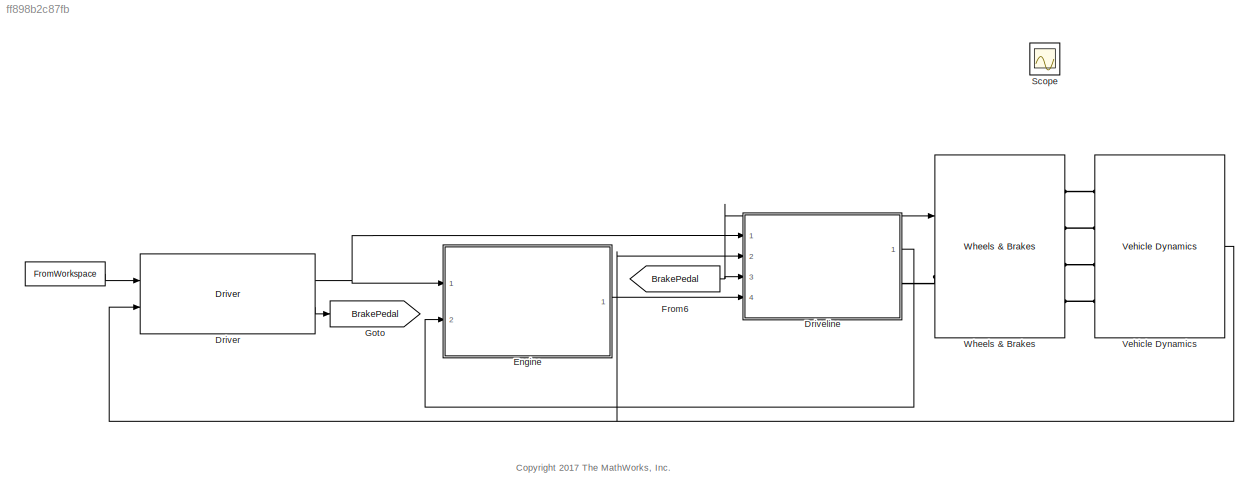
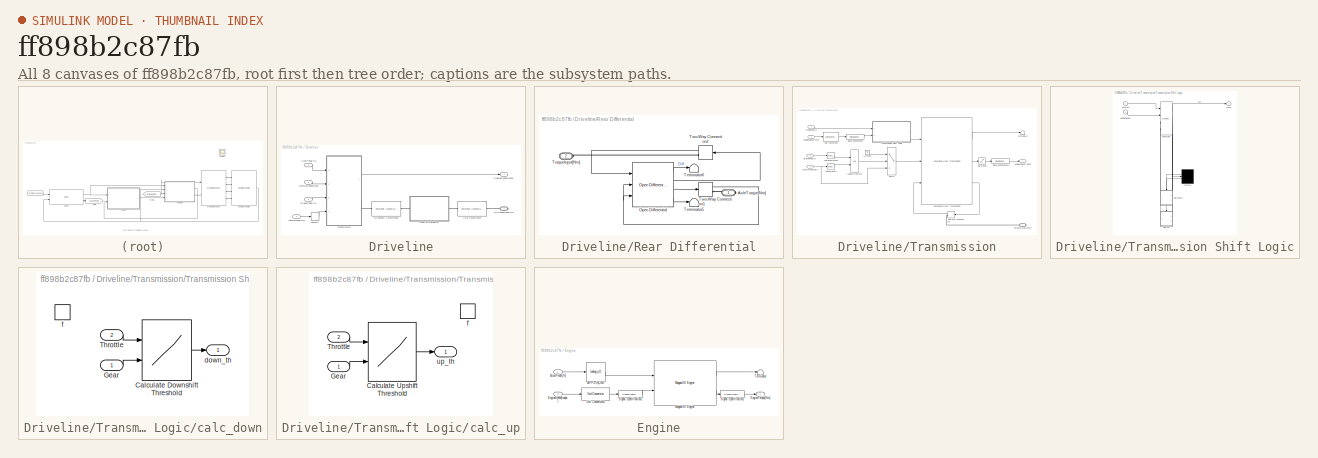
[diagram: thumbnail index - all 8 canvases of the model, root first then tree order]
MODEL slx_ff898b2c87fb
KIND model
CONFIG AbsTol = 1e-6
CONFIG EnableMultiTasking = off
CONFIG FixedStep = auto
CONFIG MaxStep = auto
CONFIG MinStep = auto
CONFIG RelTol = 1e-4
CONFIG SampleTimeConstraint = Unconstrained
CONFIG Solver = ode23tb
CONFIG SolverName = ode23tb
CONFIG StartTime = 0.0
CONFIG StopTime = TimeUS06
WORKSPACE source: MAT-file member
WORKSPACE Af = 4
BLOCK [FromWorkspace]  
  SampleTime = 0
  Tag = DriveCycle
  VariableName = DrCycles.US06
  ZeroCross = on
BLOCK [SubSystem] Driveline
  Ports = [4, 1, 0, 0, 0, 0, 1]
  RequestExecContextInheritance = off
BLOCK [Inport] Driveline/AccelPedal[%]
  IconDisplay = Port number
BLOCK [Reference] Driveline/Axle Compliance  REF=autolibsharedcoupling/Torsional Compliance
  Ports = [0, 0, 0, 0, 0, 1, 1]
  SourceBlock = autolibsharedcoupling/Torsional Compliance
  SourceProductBaseCode = PW
  SourceProductName = Powertrain Blockset
  SourceType = Torsional Compliance
BLOCK [Inport] Driveline/BrakePedal[%]
  IconDisplay = Port number
  Port = 3
BLOCK [Reference] Driveline/Driveshaft Compliance  REF=autolibsharedcoupling/Torsional Compliance
  Ports = [0, 0, 0, 0, 0, 1, 1]
  SourceBlock = autolibsharedcoupling/Torsional Compliance
  SourceProductBaseCode = PW
  SourceProductName = Powertrain Blockset
  SourceType = Torsional Compliance
BLOCK [PMIOPort] Driveline/DrivingTorque[Nm]
  Side = Right
BLOCK [Outport] Driveline/EngineSpeed[radps]
  IconDisplay = Port number
BLOCK [Inport] Driveline/InputTorque[Nm]
  IconDisplay = Port number
  Port = 4
BLOCK [Memory] Driveline/Memory
BLOCK [SubSystem] Driveline/Rear Differential
  Ports = [0, 0, 0, 0, 0, 1, 1]
  RequestExecContextInheritance = off
BLOCK [PMIOPort] Driveline/Rear Differential/AxleTorque[Nm]
  Side = Right
BLOCK [Reference] Driveline/Rear Differential/Open Differential  REF=autolibshareddiff/Open Differential
  Ports = [3, 4]
  SourceBlock = autolibshareddiff/Open Differential
  SourceProductBaseCode = PW
  SourceProductName = Powertrain Blockset
  SourceType = Open Differential
BLOCK [Terminator] Driveline/Rear Differential/Terminator5
BLOCK [Terminator] Driveline/Rear Differential/Terminator6
BLOCK [PMIOPort] Driveline/Rear Differential/TorqueInput[Nm]
  Port = 2
  Side = Left
BLOCK [TwoWayConnection] Driveline/Rear Differential/Two-Way Connection1
  Ports = [1, 1, 0, 0, 0, 0, 1]
BLOCK [TwoWayConnection] Driveline/Rear Differential/Two-Way Connection2
  Ports = [1, 1, 0, 0, 0, 0, 1]
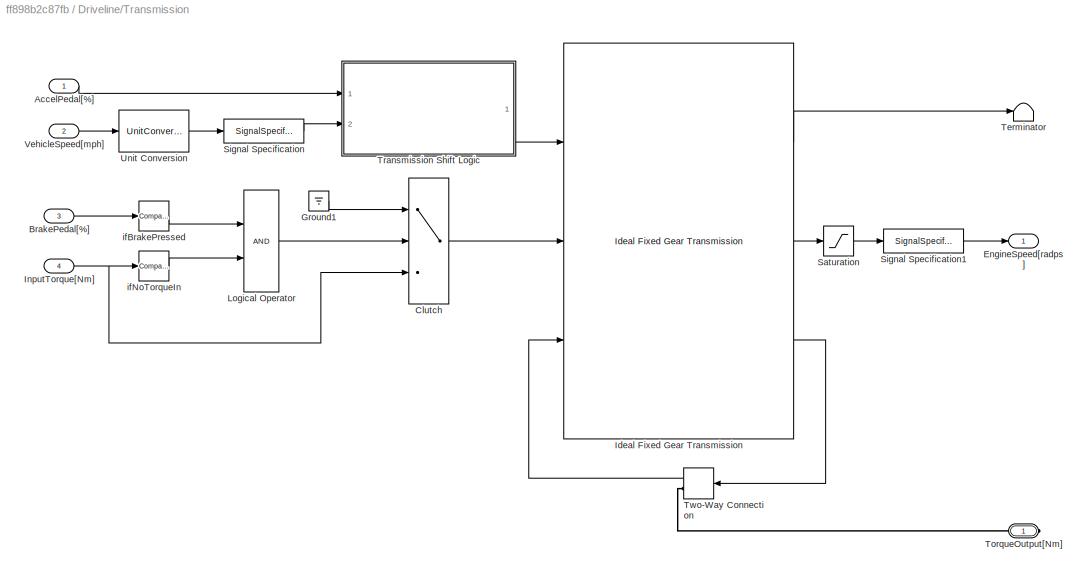
BLOCK [SubSystem] Driveline/Transmission
  Ports = [4, 1, 0, 0, 0, 0, 1]
  RequestExecContextInheritance = off
BLOCK [Inport] Driveline/Transmission/AccelPedal[%]
  IconDisplay = Port number
BLOCK [Inport] Driveline/Transmission/BrakePedal[%]
  IconDisplay = Port number
  Port = 3
BLOCK [Switch] Driveline/Transmission/Clutch
  Criteria = u2 ~= 0
  InputSameDT = off
  SaturateOnIntegerOverflow = off
BLOCK [Outport] Driveline/Transmission/EngineSpeed[radps]
  IconDisplay = Port number
BLOCK [Ground] Driveline/Transmission/Ground1
BLOCK [Reference] Driveline/Transmission/Ideal Fixed Gear Transmission  REF=autolibsharedtransfixedgear/Ideal Fixed Gear Transmission
  Ports = [3, 3]
  SourceBlock = autolibsharedtransfixedgear/Ideal Fixed Gear Transmission
  SourceProductBaseCode = PW
  SourceProductName = Powertrain Blockset
  SourceType = Ideal Fixed Gear Transmission
BLOCK [Inport] Driveline/Transmission/InputTorque[Nm]
  IconDisplay = Port number
  Port = 4
BLOCK [Logic] Driveline/Transmission/Logical Operator
  AllPortsSameDT = off
  OutDataTypeStr = boolean
  Ports = [2, 1]
BLOCK [Saturate] Driveline/Transmission/Saturation
  InputPortMap = u0
  LowerLimit = 500
  Ports = [1, 1]
  UpperLimit = 6000
BLOCK [SignalSpecification] Driveline/Transmission/Signal Specification
  Unit = km/h
BLOCK [SignalSpecification] Driveline/Transmission/Signal Specification1
  Unit = rad/s
BLOCK [Terminator] Driveline/Transmission/Terminator
BLOCK [PMIOPort] Driveline/Transmission/TorqueOutput[Nm]
  Side = Right
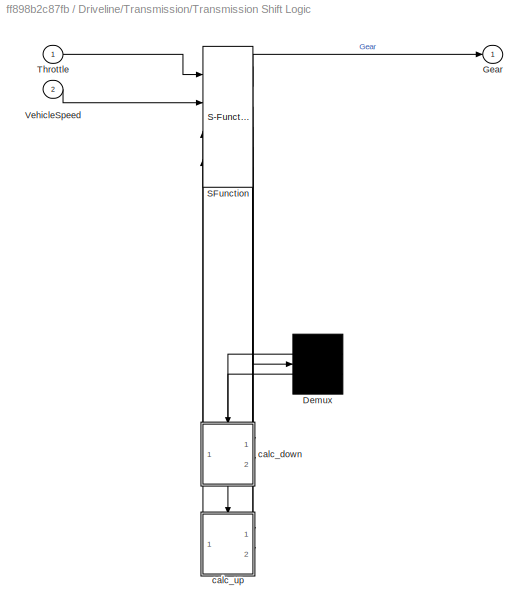
BLOCK [SubSystem] Driveline/Transmission/Transmission Shift Logic
  ErrorFcn = Stateflow.Translate.translate
  PermitHierarchicalResolution = ExplicitOnly
  Ports = [2, 1]
  RequestExecContextInheritance = off
  SFBlockType = Chart
  TreatAsAtomicUnit = on
BLOCK [Demux] Driveline/Transmission/Transmission Shift Logic/ Demux 
  Outputs = 2
  Ports = [1, 2]
BLOCK [S-Function] Driveline/Transmission/Transmission Shift Logic/ SFunction 
  EnableBusSupport = on
  FunctionName = sf_sfun
  PortCounts = [4 6]
  Ports = [4, 6]
  SFcnIsStateOwnerBlock = off
  SFunctionDeploymentMode = off
  Tag = Stateflow S-Function PTB_ConventionalModel 1
BLOCK [Outport] Driveline/Transmission/Transmission Shift Logic/Gear
  IconDisplay = Port number
BLOCK [Inport] Driveline/Transmission/Transmission Shift Logic/Throttle
  IconDisplay = Port number
BLOCK [Inport] Driveline/Transmission/Transmission Shift Logic/VehicleSpeed
  IconDisplay = Port number
  Port = 2
BLOCK [SubSystem] Driveline/Transmission/Transmission Shift Logic/calc_down
  Ports = [2, 1, 0, 1]
  PreDeleteFcn = Stateflow.SLINSF.SimulinkMan.removePreDeleteFcn
  RequestExecContextInheritance = off
  UndoDeleteFcn = Stateflow.SLINSF.SimulinkMan.restorePreDeleteFcn
BLOCK [Lookup2D] Driveline/Transmission/Transmission Shift Logic/calc_down/Calculate Downshift Threshold
  ColumnIndex = [2,3,4,5,6]
  InputSameDT = off
  LookUpMeth = Interpolation-Use End Values
  RowIndex = PedalPositions
  SaturateOnIntegerOverflow = off
  Table = DownShiftSpeeds'
BLOCK [Inport] Driveline/Transmission/Transmission Shift Logic/calc_down/Gear
  IconDisplay = Port number
BLOCK [Inport] Driveline/Transmission/Transmission Shift Logic/calc_down/Throttle
  IconDisplay = Port number
  Port = 2
BLOCK [Outport] Driveline/Transmission/Transmission Shift Logic/calc_down/down_th
  IconDisplay = Port number
BLOCK [TriggerPort] Driveline/Transmission/Transmission Shift Logic/calc_down/f
  CopyFcn = Stateflow.SLINSF.SimulinkMan.removeBlockPreDeleteFcn
  Ports = []
  PreDeleteFcn = Stateflow.SLINSF.SimulinkMan.unsafePredeleteFcn
  TriggerType = function-call
  VariantControl = Variant
BLOCK [SubSystem] Driveline/Transmission/Transmission Shift Logic/calc_up
  Ports = [2, 1, 0, 1]
  PreDeleteFcn = Stateflow.SLINSF.SimulinkMan.removePreDeleteFcn
  RequestExecContextInheritance = off
  UndoDeleteFcn = Stateflow.SLINSF.SimulinkMan.restorePreDeleteFcn
BLOCK [Lookup2D] Driveline/Transmission/Transmission Shift Logic/calc_up/Calculate Upshift Threshold
  ColumnIndex = [1,2,3,4,5]
  InputSameDT = off
  LookUpMeth = Interpolation-Use End Values
  RowIndex = PedalPositions
  SaturateOnIntegerOverflow = off
  Table = UpShiftSpeeds'
BLOCK [Inport] Driveline/Transmission/Transmission Shift Logic/calc_up/Gear
  IconDisplay = Port number
BLOCK [Inport] Driveline/Transmission/Transmission Shift Logic/calc_up/Throttle
  IconDisplay = Port number
  Port = 2
BLOCK [TriggerPort] Driveline/Transmission/Transmission Shift Logic/calc_up/f
  CopyFcn = Stateflow.SLINSF.SimulinkMan.removeBlockPreDeleteFcn
  Ports = []
  PreDeleteFcn = Stateflow.SLINSF.SimulinkMan.unsafePredeleteFcn
  TriggerType = function-call
  VariantControl = Variant
BLOCK [Outport] Driveline/Transmission/Transmission Shift Logic/calc_up/up_th
  IconDisplay = Port number
BLOCK [TwoWayConnection] Driveline/Transmission/Two-Way Connection
  Ports = [1, 1, 0, 0, 0, 0, 1]
BLOCK [UnitConversion] Driveline/Transmission/Unit Conversion
BLOCK [Inport] Driveline/Transmission/VehicleSpeed[mph]
  IconDisplay = Port number
  Port = 2
BLOCK [Reference] Driveline/Transmission/ifBrakePressed  REF=simulink/Logic and Bit
Operations/Compare
To Constant
  Ports = [1, 1]
  SourceBlock = simulink/Logic and Bit\nOperations/Compare\nTo Constant
  SourceProductBaseCode = SL
  SourceProductName = Simulink
  SourceType = Compare To Constant
BLOCK [Reference] Driveline/Transmission/ifNoTorqueIn  REF=simulink/Logic and Bit
Operations/Compare
To Constant
  Ports = [1, 1]
  SourceBlock = simulink/Logic and Bit\nOperations/Compare\nTo Constant
  SourceProductBaseCode = SL
  SourceProductName = Simulink
  SourceType = Compare To Constant
BLOCK [Inport] Driveline/VehicleSpeed[mph]
  IconDisplay = Port number
  Port = 2
BLOCK [Reference] Driver  REF=Wheels_Driver_VehDyn_Lib/Driver
  Ports = [2, 2]
  SourceBlock = Wheels_Driver_VehDyn_Lib/Driver
  SourceType = SubSystem
BLOCK [SubSystem] Engine
  Ports = [2, 1]
  RequestExecContextInheritance = off
BLOCK [Lookup_n-D] Engine/APP2TrqCmd
  BreakpointsForDimension1 = [ 0 100]
  ExtrapMethod = Clip
  InternalRulePriority = Speed
  NumberOfTableDimensions = 1
  Ports = [1, 1]
  RndMeth = Simplest
  Table = [min(min(engineTorqueMap_Nm)) max(max(engineTorqueMap_Nm))]
BLOCK [Inport] Engine/AccelPedal[%]
  IconDisplay = Port number
BLOCK [Inport] Engine/EngineSpeed[radps]
  IconDisplay = Port number
  Port = 2
BLOCK [Outport] Engine/EngineTorque[Nm]
  IconDisplay = Port number
BLOCK [Reference] Engine/Mapped SI Engine  REF=autolibsharedmappedengines/Mapped SI Engine
  Ports = [2, 2]
  SourceBlock = autolibsharedmappedengines/Mapped SI Engine
  SourceProductBaseCode = PW
  SourceProductName = Powertrain Blockset
  SourceType = Mapped SI Engine
BLOCK [SignalSpecification] Engine/Signal Specification1
  Unit = N*m
BLOCK [SignalSpecification] Engine/Signal Specification2
  Unit = rpm
BLOCK [Terminator] Engine/Terminator
BLOCK [UnitConversion] Engine/Unit Conversion1
BLOCK [From] From6
  GotoTag = BrakePedal
BLOCK [Goto] Goto
  GotoTag = BrakePedal
BLOCK [Scope] Scope
  Floating = off
  IOType = viewer
  NumInputPorts = 1
  Ports = []
  ScopeSpecificationString = Simulink.scopes.TimeScopeBlockCfg('CurrentConfiguration', extmgr.ConfigurationSet(extmgr.Configuration('Core','General UI',true),extmgr.Configuration('Core','Source UI',true),extmgr.Configuration('Sources','WiredSimulink',true),extmgr.Configuration('Visuals','Time Domain',true,'SerializedDisplays',{struct('MinYLimReal','-11.86122','MaxYLimReal','90.54014','YLabelReal','','MinYLimMag','0.00000','Ma...<+1421ch>
BLOCK [Reference] Vehicle Dynamics  REF=Wheels_Driver_VehDyn_Lib/Vehicle Dynamics
  Ports = [0, 1, 0, 0, 0, 4]
  SourceBlock = Wheels_Driver_VehDyn_Lib/Vehicle Dynamics
  SourceType = SubSystem
BLOCK [Reference] Wheels & Brakes  REF=Wheels_Driver_VehDyn_Lib/Wheels & Brakes
  Ports = [1, 0, 0, 0, 0, 1, 4]
  SourceBlock = Wheels_Driver_VehDyn_Lib/Wheels & Brakes
  SourceType = SubSystem
ANNOTATION (root): <copyright redacted>
LINE  :1 -> Driver:1
LINE Driveline/AccelPedal[%]:1 -> Driveline/Transmission:1
LINE Driveline/BrakePedal[%]:1 -> Driveline/Transmission:3
LINE Driveline/InputTorque[Nm]:1 -> Driveline/Memory:1
LINE Driveline/Memory:1 -> Driveline/Transmission:4
LINE Driveline/Rear Differential/Open Differential:1 -> Driveline/Rear Differential/Terminator6:1
LINE Driveline/Rear Differential/Open Differential:2 -> Driveline/Rear Differential/Two-Way Connection2:1
LINE Driveline/Rear Differential/Open Differential:3 -> Driveline/Rear Differential/Two-Way Connection1:1
LINE Driveline/Rear Differential/Open Differential:4 -> Driveline/Rear Differential/Terminator5:1
NET Driveline/Rear Differential/Two-Way Connection1:1 -> Driveline/Rear Differential/Open Differential:2, Driveline/Rear Differential/Open Differential:3
LINE Driveline/Rear Differential/Two-Way Connection2:1 -> Driveline/Rear Differential/Open Differential:1
LINE Driveline/Transmission/AccelPedal[%]:1 -> Driveline/Transmission/Transmission Shift Logic:1
LINE Driveline/Transmission/BrakePedal[%]:1 -> Driveline/Transmission/ifBrakePressed:1
LINE Driveline/Transmission/Clutch:1 -> Driveline/Transmission/Ideal Fixed Gear Transmission:2
LINE Driveline/Transmission/Ground1:1 -> Driveline/Transmission/Clutch:1
LINE Driveline/Transmission/Ideal Fixed Gear Transmission:1 -> Driveline/Transmission/Terminator:1
LINE Driveline/Transmission/Ideal Fixed Gear Transmission:2 -> Driveline/Transmission/Saturation:1
LINE Driveline/Transmission/Ideal Fixed Gear Transmission:3 -> Driveline/Transmission/Two-Way Connection:1
NET Driveline/Transmission/InputTorque[Nm]:1 -> Driveline/Transmission/Clutch:3, Driveline/Transmission/ifNoTorqueIn:1
LINE Driveline/Transmission/Logical Operator:1 -> Driveline/Transmission/Clutch:2
LINE Driveline/Transmission/Saturation:1 -> Driveline/Transmission/Signal Specification1:1
LINE Driveline/Transmission/Signal Specification1:1 -> Driveline/Transmission/EngineSpeed[radps]:1
LINE Driveline/Transmission/Signal Specification:1 -> Driveline/Transmission/Transmission Shift Logic:2
LINE Driveline/Transmission/Transmission Shift Logic:1 -> Driveline/Transmission/Ideal Fixed Gear Transmission:1
LINE Driveline/Transmission/Two-Way Connection:1 -> Driveline/Transmission/Ideal Fixed Gear Transmission:3
LINE Driveline/Transmission/Unit Conversion:1 -> Driveline/Transmission/Signal Specification:1
LINE Driveline/Transmission/VehicleSpeed[mph]:1 -> Driveline/Transmission/Unit Conversion:1
LINE Driveline/Transmission/ifBrakePressed:1 -> Driveline/Transmission/Logical Operator:1
LINE Driveline/Transmission/ifNoTorqueIn:1 -> Driveline/Transmission/Logical Operator:2
LINE Driveline/Transmission:1 -> Driveline/EngineSpeed[radps]:1
LINE Driveline/VehicleSpeed[mph]:1 -> Driveline/Transmission:2
LINE Driveline:1 -> Engine:2
NET Driver:1 -> Driveline:1, Engine:1
LINE Driver:2 -> Goto:1
LINE Engine/APP2TrqCmd:1 -> Engine/Mapped SI Engine:1
LINE Engine/AccelPedal[%]:1 -> Engine/APP2TrqCmd:1
LINE Engine/EngineSpeed[radps]:1 -> Engine/Unit Conversion1:1
LINE Engine/Mapped SI Engine:1 -> Engine/Terminator:1
LINE Engine/Mapped SI Engine:2 -> Engine/Signal Specification1:1
LINE Engine/Signal Specification1:1 -> Engine/EngineTorque[Nm]:1
LINE Engine/Signal Specification2:1 -> Engine/Mapped SI Engine:2
LINE Engine/Unit Conversion1:1 -> Engine/Signal Specification2:1
LINE Engine:1 -> Driveline:4
NET From6:1 -> Driveline:3, Wheels & Brakes:1
NET Vehicle Dynamics:1 -> Driveline:2, Driver:2
PLINE Driveline/Axle Compliance:LConn1 -- Driveline/Rear Differential:RConn1
PLINE Driveline/Axle Compliance:RConn1 -- Driveline/DrivingTorque[Nm]:RConn1
PLINE Driveline/Driveshaft Compliance:LConn1 -- Driveline/Transmission:RConn1
PLINE Driveline/Driveshaft Compliance:RConn1 -- Driveline/Rear Differential:LConn1
PLINE Driveline/Rear Differential/AxleTorque[Nm]:RConn1 -- Driveline/Rear Differential/Two-Way Connection1:RConn1
PLINE Driveline/Rear Differential/TorqueInput[Nm]:RConn1 -- Driveline/Rear Differential/Two-Way Connection2:RConn1
PLINE Driveline/Transmission/TorqueOutput[Nm]:RConn1 -- Driveline/Transmission/Two-Way Connection:RConn1
PLINE Driveline:RConn1 -- Wheels & Brakes:LConn1
PLINE Vehicle Dynamics:LConn1 -- Wheels & Brakes:RConn1
PLINE Vehicle Dynamics:LConn2 -- Wheels & Brakes:RConn2
PLINE Vehicle Dynamics:LConn3 -- Wheels & Brakes:RConn3
PLINE Vehicle Dynamics:LConn4 -- Wheels & Brakes:RConn4
note: NET lines group one-source signal fan-out (src -> all destinations, sorted); 1:1 wires keep LINE
CHART Driveline/Transmission/Transmission Shift Logic states=13 transitions=18
  STATE_LABEL 'gear_state'
  STATE_LABEL 'first\nentry:\nGear = 1;'
  STATE_LABEL 'second\nentry:\nGear = 2;'
  STATE_LABEL 'third\nentry:\nGear = 3;'
  STATE_LABEL 'fourth\nentry:\nGear = 4;'
  STATE_LABEL 'fifth\nentry:\nGear = 5;'
  STATE_LABEL 'sixth\nentry:\nGear = 6;'
  STATE_LABEL 'UP'
  STATE_LABEL 'UP'
  STATE_LABEL 'UP'
  STATE_LABEL 'UP'
  STATE_LABEL 'UP'
  STATE_LABEL 'DOWN'
  STATE_LABEL 'DOWN'
  STATE_LABEL 'DOWN'
  STATE_LABEL 'DOWN'
  STATE_LABEL 'DOWN'
  STATE_LABEL 'first\nentry:\nGear = 1;'
  STATE_LABEL 'second\nentry:\nGear = 2;'
  STATE_LABEL 'third\nentry:\nGear = 3;'
  STATE_LABEL 'fourth\nentry:\nGear = 4;'
  STATE_LABEL 'fifth\nentry:\nGear = 5;'
  STATE_LABEL 'sixth\nentry:\nGear = 6;'
  STATE_LABEL 'selection_state\ndu:[up_th]=calc_up(Gear,Throttle);\ndu:[down_th]=calc_down(Gear,Throttle);'
  STATE_LABEL 'steady_state'
  STATE_LABEL 'upshifting'
  STATE_LABEL 'downshifting'
  STATE_LABEL '[VehicleSpeed > up_th]'
  STATE_LABEL '[VehicleSpeed < down_th && Gear > 1]'
  STATE_LABEL '[VehicleSpeed > down_th]'
  STATE_LABEL 'after(1,tick)\n[VehicleSpeed <= down_th]\n{gear_state.DOWN;}'
  STATE_LABEL 'after(1,tick)\n[VehicleSpeed >= up_th]\n{gear_state.UP;}'
  STATE_LABEL '[VehicleSpeed < up_th]'
  STATE_LABEL 'steady_state'
  STATE_LABEL 'upshifting'
  STATE_LABEL 'downshifting'
  STATE_LABEL 'up_th = calc_up(Gear,Throttle)'
  STATE_LABEL 'down_th = calc_down(Gear,Throttle)'
